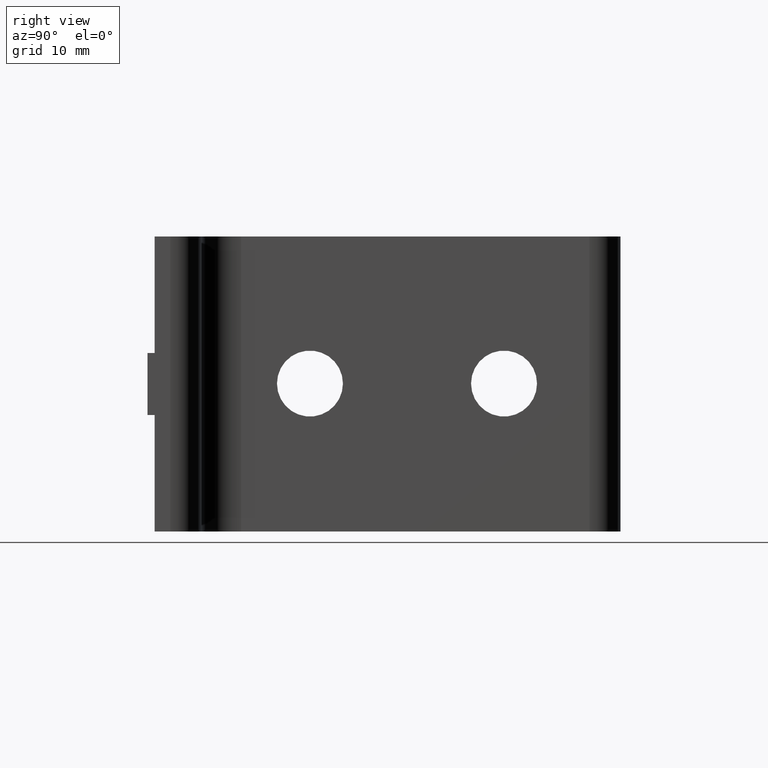
[diagram: clean part render]
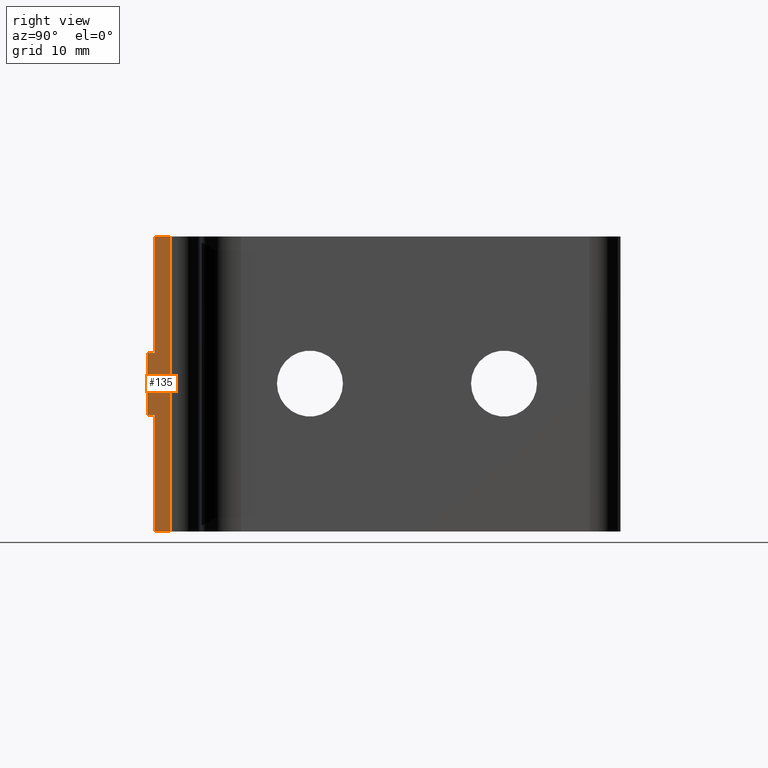
[diagram: same view with one face highlighted and labeled with its STEP entity id]
A machine part, right view. The second image highlights one B-rep face of the part: STEP entity #135.
In plain terms, the highlighted planar face has unit normal (1, -0, 0).
Its self-contained STEP definition (entity closure, byte-faithful):
#48=CARTESIAN_POINT('',(59.999989242192896,-0.922113719896061,-3.999991966924856));
#49=VERTEX_POINT('',#48);
#56=CARTESIAN_POINT('',(59.999989242192896,-0.922113719896061,3.999991966924856));
#57=VERTEX_POINT('',#56);
#58=CARTESIAN_POINT('',(59.999989242192896,-0.922113719896061,-3.999991966924856));
#59=DIRECTION('',(0.0,0.0,1.0));
#60=VECTOR('',#59,7.999983933849713);
#61=LINE('',#58,#60);
#62=EDGE_CURVE('',#49,#57,#61,.T.);
#73=CARTESIAN_POINT('',(59.999989242192896,-0.922113719896061,-18.999991966924856));
#74=DIRECTION('',(1.0,-1.556227E-013,0.0));
#75=DIRECTION('',(1.556227E-013,1.0,0.0));
#76=AXIS2_PLACEMENT_3D('',#73,#74,#75);
#77=PLANE('',#76);
#78=CARTESIAN_POINT('',(59.999989242193351,2.000001343853455,-18.999991966924856));
#79=VERTEX_POINT('',#78);
#80=CARTESIAN_POINT('',(59.999989242193351,2.000001343853455,18.999991966924856));
#81=VERTEX_POINT('',#80);
#82=CARTESIAN_POINT('',(59.999989242193351,2.000001343853455,-18.999991966924856));
#83=DIRECTION('',(0.0,0.0,1.0));
#84=VECTOR('',#83,37.999983933849713);
#85=LINE('',#82,#84);
#86=EDGE_CURVE('',#79,#81,#85,.T.);
#87=ORIENTED_EDGE('',*,*,#86,.T.);
#88=CARTESIAN_POINT('',(59.999989242192896,0.0,18.999991966924856));
#89=VERTEX_POINT('',#88);
#90=CARTESIAN_POINT('',(59.999989242193038,0.0,18.999991966924856));
#91=DIRECTION('',(1.563193E-013,1.0,0.0));
#92=VECTOR('',#91,2.000001343853455);
#93=LINE('',#90,#92);
#94=EDGE_CURVE('',#89,#81,#93,.T.);
#95=ORIENTED_EDGE('',*,*,#94,.F.);
#96=CARTESIAN_POINT('',(59.999989242193351,0.0,3.999991966924856));
#97=VERTEX_POINT('',#96);
#98=CARTESIAN_POINT('',(59.999989242192896,0.0,18.999991966924856));
#99=DIRECTION('',(0.0,0.0,-1.0));
#100=VECTOR('',#99,15.0);
#101=LINE('',#98,#100);
#102=EDGE_CURVE('',#89,#97,#101,.T.);
#103=ORIENTED_EDGE('',*,*,#102,.T.);
#104=CARTESIAN_POINT('',(59.999989242192896,-0.922113719896061,3.999991966924856));
#105=DIRECTION('',(4.931576E-013,1.0,0.0));
#106=VECTOR('',#105,0.922113719896061);
#107=LINE('',#104,#106);
#108=EDGE_CURVE('',#57,#97,#107,.T.);
#109=ORIENTED_EDGE('',*,*,#108,.F.);
#110=ORIENTED_EDGE('',*,*,#62,.F.);
#111=CARTESIAN_POINT('',(59.999989242193351,0.0,-3.999991966924856));
#112=VERTEX_POINT('',#111);
#113=CARTESIAN_POINT('',(59.999989242192896,-0.922113719896061,-3.999991966924856));
#114=DIRECTION('',(4.931576E-013,1.0,0.0));
#115=VECTOR('',#114,0.922113719896061);
#116=LINE('',#113,#115);
#117=EDGE_CURVE('',#49,#112,#116,.T.);
#118=ORIENTED_EDGE('',*,*,#117,.T.);
#119=CARTESIAN_POINT('',(59.999989242192896,0.0,-18.999991966924856));
#120=VERTEX_POINT('',#119);
#121=CARTESIAN_POINT('',(59.999989242192896,0.0,-18.999991966924856));
#122=DIRECTION('',(0.0,0.0,1.0));
#123=VECTOR('',#122,15.0);
#124=LINE('',#121,#123);
#125=EDGE_CURVE('',#120,#112,#124,.T.);
#126=ORIENTED_EDGE('',*,*,#125,.F.);
#127=CARTESIAN_POINT('',(59.999989242193038,0.0,-18.999991966924856));
#128=DIRECTION('',(1.563193E-013,1.0,0.0));
#129=VECTOR('',#128,2.000001343853455);
#130=LINE('',#127,#129);
#131=EDGE_CURVE('',#120,#79,#130,.T.);
#132=ORIENTED_EDGE('',*,*,#131,.T.);
#133=EDGE_LOOP('',(#87,#95,#103,#109,#110,#118,#126,#132));
#134=FACE_OUTER_BOUND('',#133,.T.);
#135=ADVANCED_FACE('',(#134),#77,.T.);